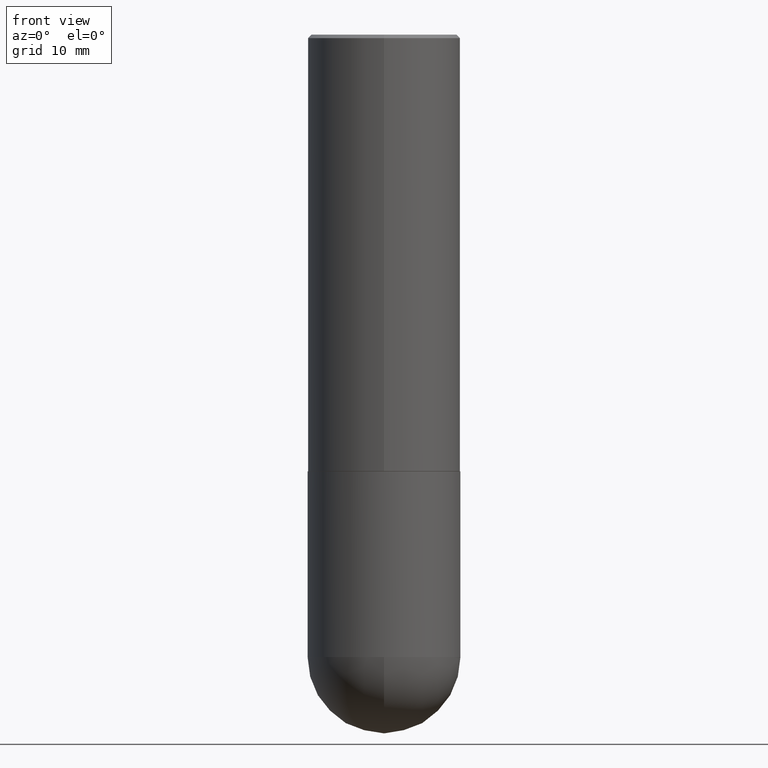
[diagram: clean part render]
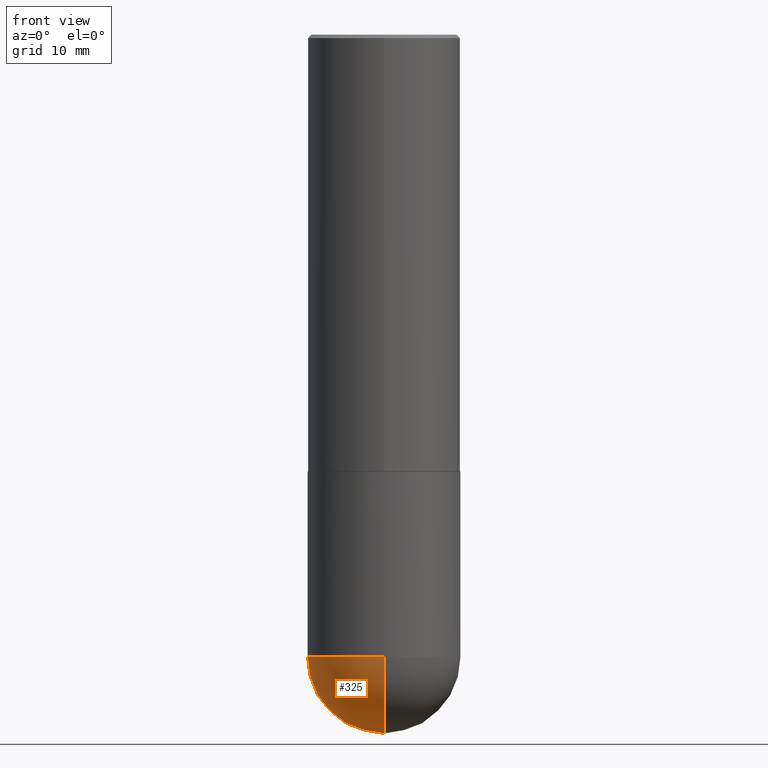
[diagram: same view with one face highlighted and labeled with its STEP entity id]
A machine part, front view. The second image highlights one B-rep face of the part: STEP entity #325.
In plain terms, the highlighted spherical surface has radius 11.1125 mm.
Its self-contained STEP definition (entity closure, byte-faithful):
#25 = AXIS2_PLACEMENT_3D ( 'NONE', #28, #287, #164 ) ;
#27 = VERTEX_POINT ( 'NONE', #283 ) ;
#28 = CARTESIAN_POINT ( 'NONE',  ( 8.380862844120662879E-29, -1.291258463776875784E-14, -3.562500000000000000 ) ) ;
#51 = CARTESIAN_POINT ( 'NONE',  ( 8.380862844120662879E-29, -1.291258463776875784E-14, -3.562500000000000000 ) ) ;
#55 = CARTESIAN_POINT ( 'NONE',  ( 8.711982622034549126E-29, -1.243840226962870597E-14, -3.562500000000000000 ) ) ;
#57 = CARTESIAN_POINT ( 'NONE',  ( 8.380862844120662879E-29, -1.291258463776875784E-14, -3.562500000000000000 ) ) ;
#60 = DIRECTION ( 'NONE',  ( 1.000000000000000000, -6.982962677686265133E-15, 0.000000000000000000 ) ) ;
#63 = CARTESIAN_POINT ( 'NONE',  ( 8.711982622034549126E-29, -1.243840226962870597E-14, -3.562500000000000000 ) ) ;
#66 = ORIENTED_EDGE ( 'NONE', *, *, #115, .T. ) ;
#87 = CARTESIAN_POINT ( 'NONE',  ( -3.108624468950352327E-15, -0.4375000000000127676, -3.562499999999998224 ) ) ;
#98 = AXIS2_PLACEMENT_3D ( 'NONE', #51, #250, #407 ) ;
#110 = EDGE_CURVE ( 'NONE', #338, #27, #144, .T. ) ;
#115 = EDGE_CURVE ( 'NONE', #245, #393, #352, .T. ) ;
#116 = CIRCLE ( 'NONE', #183, 0.4375000000000001665 ) ;
#122 = CARTESIAN_POINT ( 'NONE',  ( 3.055046171487827277E-15, 0.4374999999999873435, -3.562500000000001776 ) ) ;
#144 = CIRCLE ( 'NONE', #299, 0.4374999999999998890 ) ;
#154 = ORIENTED_EDGE ( 'NONE', *, *, #110, .F. ) ;
#164 = DIRECTION ( 'NONE',  ( -7.105427357601001070E-15, -1.000000000000000000, 0.000000000000000000 ) ) ;
#183 = AXIS2_PLACEMENT_3D ( 'NONE', #57, #312, #188 ) ;
#184 = EDGE_LOOP ( 'NONE', ( #304, #66, #206, #154 ) ) ;
#188 = DIRECTION ( 'NONE',  ( 6.982962677686265922E-15, 1.000000000000000000, 0.000000000000000000 ) ) ;
#189 = DIRECTION ( 'NONE',  ( 1.000000000000000000, -6.982962677686265133E-15, 0.000000000000000000 ) ) ;
#206 = ORIENTED_EDGE ( 'NONE', *, *, #331, .F. ) ;
#215 = FACE_OUTER_BOUND ( 'NONE', #184, .T. ) ;
#234 = CIRCLE ( 'NONE', #328, 0.4374999999999998890 ) ;
#245 = VERTEX_POINT ( 'NONE', #290 ) ;
#250 = DIRECTION ( 'NONE',  ( -1.000000000000000000, 6.982962677686265922E-15, -4.883557194083112340E-29 ) ) ;
#279 = SPHERICAL_SURFACE ( 'NONE', #98, 0.4375000000000001665 ) ;
#283 = CARTESIAN_POINT ( 'NONE',  ( -0.4374999999999998890, -7.474928339417851874E-15, -3.562500000000000000 ) ) ;
#287 = DIRECTION ( 'NONE',  ( -1.000000000000000000, 7.105427357601001070E-15, -4.926315508542082329E-29 ) ) ;
#290 = CARTESIAN_POINT ( 'NONE',  ( 9.469462209402459055E-29, -1.441331857478128510E-14, -4.000000000000000000 ) ) ;
#299 = AXIS2_PLACEMENT_3D ( 'NONE', #63, #318, #189 ) ;
#304 = ORIENTED_EDGE ( 'NONE', *, *, #317, .F. ) ;
#312 = DIRECTION ( 'NONE',  ( 1.000000000000000000, -6.982962677686265922E-15, 4.883557194083112340E-29 ) ) ;
#317 = EDGE_CURVE ( 'NONE', #245, #338, #116, .T. ) ;
#318 = DIRECTION ( 'NONE',  ( -2.445468806185136597E-29, 3.491481338843145583E-15, 1.000000000000000000 ) ) ;
#325 = ADVANCED_FACE ( 'NONE', ( #215 ), #279, .T. ) ;
#328 = AXIS2_PLACEMENT_3D ( 'NONE', #55, #372, #60 ) ;
#331 = EDGE_CURVE ( 'NONE', #27, #393, #234, .T. ) ;
#338 = VERTEX_POINT ( 'NONE', #122 ) ;
#352 = CIRCLE ( 'NONE', #25, 0.4375000000000001665 ) ;
#372 = DIRECTION ( 'NONE',  ( -2.445468806185136597E-29, 3.491481338843145583E-15, 1.000000000000000000 ) ) ;
#393 = VERTEX_POINT ( 'NONE', #87 ) ;
#407 = DIRECTION ( 'NONE',  ( 6.982962677686265922E-15, 1.000000000000000000, -3.746534391310987979E-15 ) ) ;